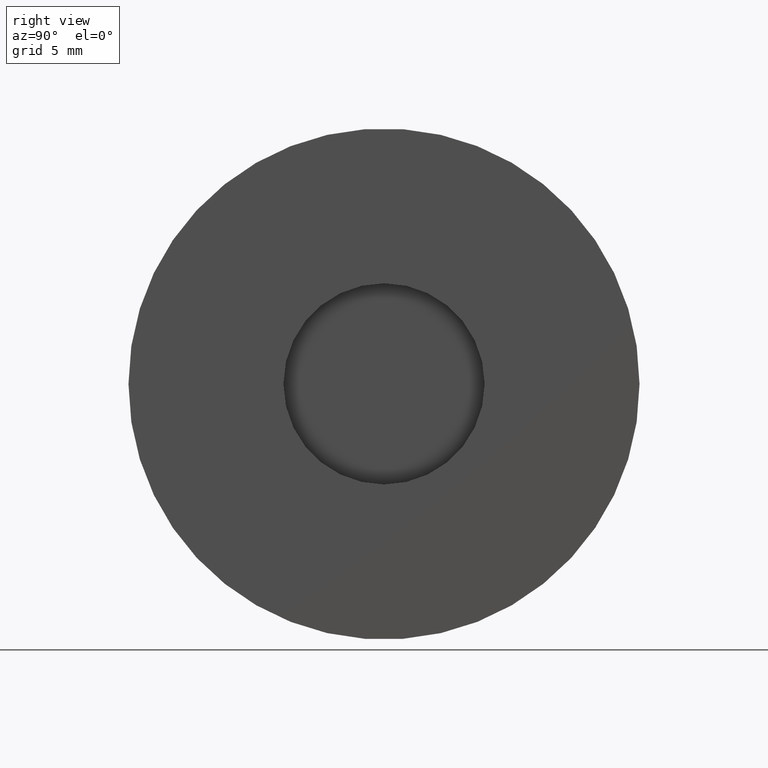
[diagram: clean part render]
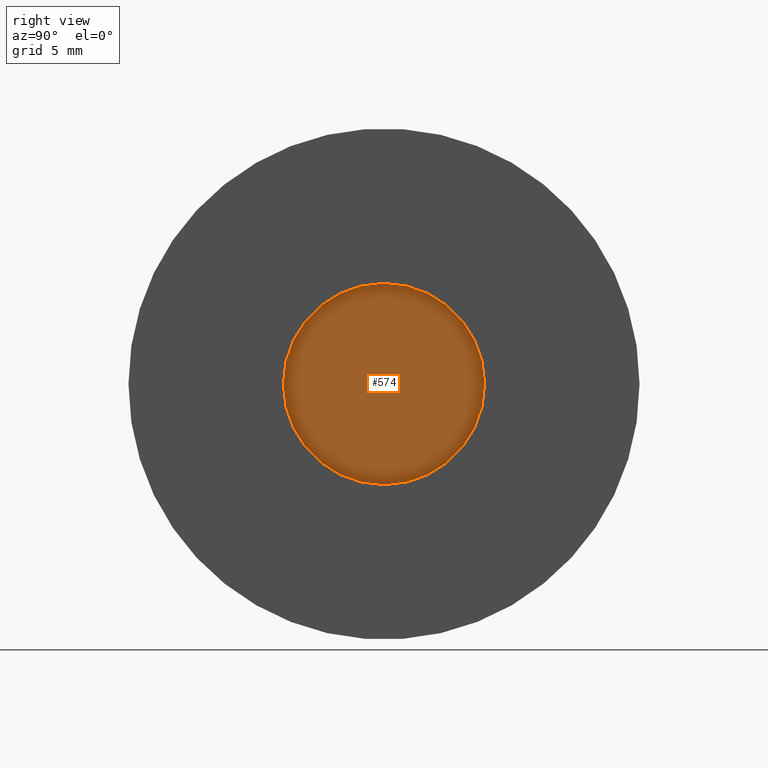
[diagram: same view with one face highlighted and labeled with its STEP entity id]
A machine part, right view. The second image highlights one B-rep face of the part: STEP entity #574.
In plain terms, the highlighted planar face has unit normal (1, 0, 0).
Its self-contained STEP definition (entity closure, byte-faithful):
#7 = CARTESIAN_POINT ( 'NONE',  ( 1.500000000000000000, -5.000000000000000000, 6.123233995736771213E-16 ) ) ;
#47 = FACE_OUTER_BOUND ( 'NONE', #648, .T. ) ;
#62 = DIRECTION ( 'NONE',  ( 1.000000000000000000, 0.000000000000000000, 0.000000000000000000 ) ) ;
#89 = AXIS2_PLACEMENT_3D ( 'NONE', #143, #614, #102 ) ;
#95 = CARTESIAN_POINT ( 'NONE',  ( 1.500000000000000000, 5.000000000000000000, 0.000000000000000000 ) ) ;
#101 = ORIENTED_EDGE ( 'NONE', *, *, #417, .T. ) ;
#102 = DIRECTION ( 'NONE',  ( 0.000000000000000000, 0.000000000000000000, -1.000000000000000000 ) ) ;
#117 = EDGE_CURVE ( 'NONE', #589, #225, #309, .T. ) ;
#143 = CARTESIAN_POINT ( 'NONE',  ( 1.500000000000000000, 0.000000000000000000, 0.000000000000000000 ) ) ;
#196 = DIRECTION ( 'NONE',  ( 1.000000000000000000, 0.000000000000000000, 0.000000000000000000 ) ) ;
#208 = CARTESIAN_POINT ( 'NONE',  ( 1.500000000000000000, 0.000000000000000000, 0.000000000000000000 ) ) ;
#225 = VERTEX_POINT ( 'NONE', #95 ) ;
#309 = CIRCLE ( 'NONE', #547, 5.000000000000000000 ) ;
#311 = AXIS2_PLACEMENT_3D ( 'NONE', #208, #62, #413 ) ;
#333 = ORIENTED_EDGE ( 'NONE', *, *, #117, .T. ) ;
#413 = DIRECTION ( 'NONE',  ( 0.000000000000000000, 1.000000000000000000, 0.000000000000000000 ) ) ;
#417 = EDGE_CURVE ( 'NONE', #225, #589, #434, .T. ) ;
#434 = CIRCLE ( 'NONE', #89, 5.000000000000000000 ) ;
#506 = PLANE ( 'NONE',  #311 ) ;
#547 = AXIS2_PLACEMENT_3D ( 'NONE', #661, #196, #613 ) ;
#574 = ADVANCED_FACE ( 'NONE', ( #47 ), #506, .T. ) ;
#589 = VERTEX_POINT ( 'NONE', #7 ) ;
#613 = DIRECTION ( 'NONE',  ( 0.000000000000000000, 0.000000000000000000, -1.000000000000000000 ) ) ;
#614 = DIRECTION ( 'NONE',  ( 1.000000000000000000, 0.000000000000000000, 0.000000000000000000 ) ) ;
#648 = EDGE_LOOP ( 'NONE', ( #101, #333 ) ) ;
#661 = CARTESIAN_POINT ( 'NONE',  ( 1.500000000000000000, 0.000000000000000000, 0.000000000000000000 ) ) ;